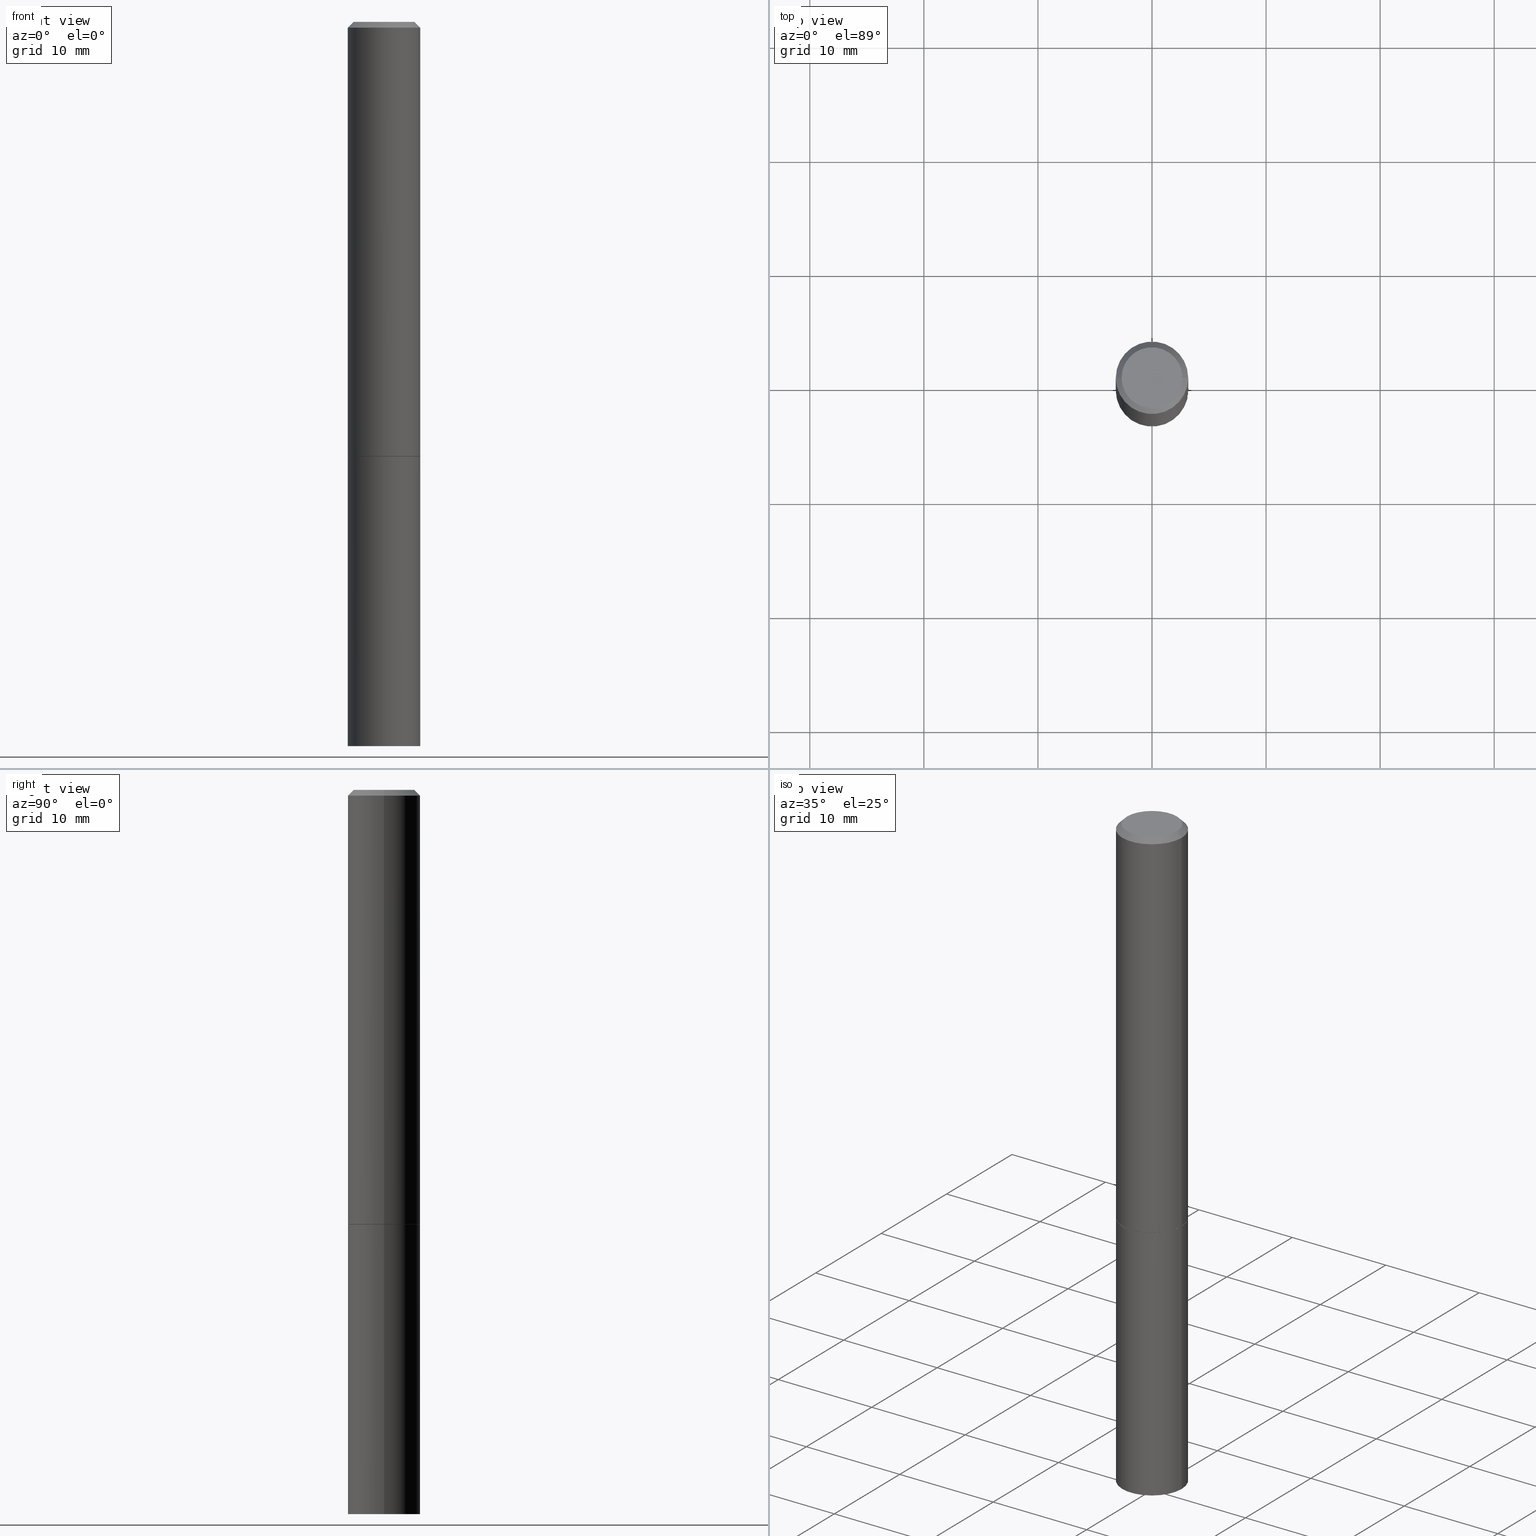
[diagram: canonical four-view strip — front | top / right | iso, engineering-drawing reading convention]
A machine part, canonical four-view strip (front | top / right | iso — engineering-drawing reading convention). The complete STEP part file that produces these views, byte-faithful:
ISO-10303-21;
HEADER;
FILE_DESCRIPTION (( 'STEP AP203' ),
    '1' );
FILE_NAME ('72970.STEP',
    '2024-02-29T05:47:59',
    ( '' ),
    ( '' ),
    'SwSTEP 2.0',
    'SolidWorks 2023',
    '' );
FILE_SCHEMA (( 'CONFIG_CONTROL_DESIGN' ));
ENDSEC;

DATA;
#1 = CARTESIAN_POINT ( 'NONE',  ( 3.665757740471519853E-29, -5.233730526925875958E-15, -1.499000000000000110 ) ) ;
#2 = COORDINATED_UNIVERSAL_TIME_OFFSET ( 5, 0, .BEHIND. ) ;
#3 = DIRECTION ( 'NONE',  ( -2.445468806185136597E-29, 3.491481338843145583E-15, 1.000000000000000000 ) ) ;
#4 = AXIS2_PLACEMENT_3D ( 'NONE', #92, #68, #120 ) ;
#5 = DIRECTION ( 'NONE',  ( 1.000000000000000000, -6.982962677686266711E-15, 4.876206205277401876E-29 ) ) ;
#6 = CC_DESIGN_DATE_AND_TIME_ASSIGNMENT ( #87, #206, ( #97 ) ) ;
#7 = CYLINDRICAL_SURFACE ( 'NONE', #74, 0.1250000000000000000 ) ;
#8 = PERSON_AND_ORGANIZATION_ROLE ( 'design_supplier' ) ;
#9 = CARTESIAN_POINT ( 'NONE',  ( 6.113672015462842613E-29, -8.728703347107864943E-15, -2.500000000000000000 ) ) ;
#10 = PERSON_AND_ORGANIZATION ( #320, #110 ) ;
#11 = FACE_OUTER_BOUND ( 'NONE', #223, .T. ) ;
#12 = AXIS2_PLACEMENT_3D ( 'NONE', #276, #180, #274 ) ;
#13 = EDGE_CURVE ( 'NONE', #365, #132, #312, .T. ) ;
#14 = ORIENTED_EDGE ( 'NONE', *, *, #76, .F. ) ;
#15 = ADVANCED_FACE ( 'NONE', ( #109 ), #112, .T. ) ;
#16 = EDGE_LOOP ( 'NONE', ( #284, #335, #216, #130 ) ) ;
#17 = CIRCLE ( 'NONE', #225, 0.1049999999999998296 ) ;
#18 = DIRECTION ( 'NONE',  ( 2.438088387897960049E-29, -3.491481338843145188E-15, -1.000000000000000000 ) ) ;
#19 = ORIENTED_EDGE ( 'NONE', *, *, #326, .T. ) ;
#20 = CC_DESIGN_PERSON_AND_ORGANIZATION_ASSIGNMENT ( #119, #344, ( #361 ) ) ;
#21 = CIRCLE ( 'NONE', #232, 0.1250000000000000000 ) ;
#22 = ADVANCED_BREP_SHAPE_REPRESENTATION ( '72970', ( #203, #214, #57 ), #35 ) ;
#23 = AXIS2_PLACEMENT_3D ( 'NONE', #307, #45, #327 ) ;
#24 = SECURITY_CLASSIFICATION ( '', '', #61 ) ;
#25 = ORIENTED_EDGE ( 'NONE', *, *, #143, .F. ) ;
#26 = DIRECTION ( 'NONE',  ( -2.445468806185136877E-29, 3.491481338843145188E-15, 1.000000000000000000 ) ) ;
#27 = DIRECTION ( 'NONE',  ( -0.7071067811865232589, 7.493145998870265808E-15, 0.7071067811865715536 ) ) ;
#28 = CIRCLE ( 'NONE', #240, 0.1250000000000000000 ) ;
#29 = DIRECTION ( 'NONE',  ( 0.7071067811865232589, -2.468850131082003836E-15, 0.7071067811865715536 ) ) ;
#30 = DIRECTION ( 'NONE',  ( -0.7071067811865465735, 2.468850131082246805E-15, -0.7071067811865484609 ) ) ;
#31 = APPROVAL ( #148, 'UNSPECIFIED' ) ;
#32 = LINE ( 'NONE', #265, #310 ) ;
#33 = COORDINATED_UNIVERSAL_TIME_OFFSET ( 5, 0, .BEHIND. ) ;
#34 = CLOSED_SHELL ( 'NONE', ( #279, #15, #171, #60 ) ) ;
#35 =( GEOMETRIC_REPRESENTATION_CONTEXT ( 3 ) GLOBAL_UNCERTAINTY_ASSIGNED_CONTEXT ( ( #219 ) ) GLOBAL_UNIT_ASSIGNED_CONTEXT ( ( #126, #325, #215 ) ) REPRESENTATION_CONTEXT ( 'NONE', 'WORKASPACE' ) );
#36 = DIRECTION ( 'NONE',  ( 1.000000000000000000, -6.982962677686270655E-15, 0.000000000000000000 ) ) ;
#37 = DATE_AND_TIME ( #237, #293 ) ;
#38 = DIRECTION ( 'NONE',  ( 1.000000000000000000, -6.982962677686262766E-15, 0.000000000000000000 ) ) ;
#39 = PERSON_AND_ORGANIZATION ( #320, #110 ) ;
#40 = CARTESIAN_POINT ( 'NONE',  ( 0.1250000000000000000, -6.110092342975501516E-15, -1.500000000000000222 ) ) ;
#41 = EDGE_CURVE ( 'NONE', #101, #365, #309, .T. ) ;
#42 = PERSON_AND_ORGANIZATION ( #320, #110 ) ;
#43 = COORDINATED_UNIVERSAL_TIME_OFFSET ( 5, 0, .BEHIND. ) ;
#44 = EDGE_CURVE ( 'NONE', #332, #244, #285, .T. ) ;
#45 = DIRECTION ( 'NONE',  ( 2.445468806185136597E-29, -3.491481338843145583E-15, -1.000000000000000000 ) ) ;
#46 = ORIENTED_EDGE ( 'NONE', *, *, #366, .T. ) ;
#47 = DIRECTION ( 'NONE',  ( 1.000000000000000000, -6.982962677686270655E-15, 0.000000000000000000 ) ) ;
#48 = CIRCLE ( 'NONE', #258, 0.1239999999999999991 ) ;
#49 = ORIENTED_EDGE ( 'NONE', *, *, #41, .T. ) ;
#50 = ADVANCED_FACE ( 'NONE', ( #164 ), #51, .F. ) ;
#51 = PLANE ( 'NONE',  #298 ) ;
#52 = CIRCLE ( 'NONE', #166, 0.1250000000000000000 ) ;
#53 = APPROVAL_PERSON_ORGANIZATION ( #93, #299, #291 ) ;
#54 = ORIENTED_EDGE ( 'NONE', *, *, #283, .F. ) ;
#55 = CARTESIAN_POINT ( 'NONE',  ( -0.1239999999999999991, -4.356149015922194741E-15, -1.500000000000000222 ) ) ;
#56 = CARTESIAN_POINT ( 'NONE',  ( -0.1249999999999999029, 8.881784197001245421E-16, -6.148668862818627323E-30 ) ) ;
#57 = AXIS2_PLACEMENT_3D ( 'NONE', #82, #89, #235 ) ;
#58 = AXIS2_PLACEMENT_3D ( 'NONE', #211, #352, #47 ) ;
#59 = DIRECTION ( 'NONE',  ( -2.445468806185136597E-29, 3.491481338843145583E-15, 1.000000000000000000 ) ) ;
#60 = ADVANCED_FACE ( 'NONE', ( #227 ), #255, .T. ) ;
#61 = SECURITY_CLASSIFICATION_LEVEL ( 'unclassified' ) ;
#62 = LINE ( 'NONE', #322, #187 ) ;
#63 = APPLICATION_CONTEXT ( 'configuration controlled 3d designs of mechanical parts and assemblies' ) ;
#64 = DIRECTION ( 'NONE',  ( 1.000000000000000000, -6.982962677686266711E-15, 4.876176775795935793E-29 ) ) ;
#65 = PERSON_AND_ORGANIZATION_ROLE ( 'creator' ) ;
#66 = DIRECTION ( 'NONE',  ( 1.000000000000000000, -6.982962677686266711E-15, 4.876176775795935793E-29 ) ) ;
#67 = EDGE_CURVE ( 'NONE', #304, #259, #165, .T. ) ;
#68 = DIRECTION ( 'NONE',  ( 2.438088387897960049E-29, -3.491481338843145188E-15, -1.000000000000000000 ) ) ;
#69 = DIRECTION ( 'NONE',  ( 1.000000000000000000, -6.982962677686270655E-15, 0.000000000000000000 ) ) ;
#70 = CIRCLE ( 'NONE', #12, 0.1250000000000000000 ) ;
#71 = DIRECTION ( 'NONE',  ( -2.445468806185136597E-29, 3.491481338843145583E-15, 1.000000000000000000 ) ) ;
#72 = FACE_OUTER_BOUND ( 'NONE', #183, .T. ) ;
#73 = VERTEX_POINT ( 'NONE', #139 ) ;
#74 = AXIS2_PLACEMENT_3D ( 'NONE', #202, #319, #66 ) ;
#75 = LOCAL_TIME ( 0, 47, 59.00000000000000000, #2 ) ;
#76 = EDGE_CURVE ( 'NONE', #259, #365, #21, .T. ) ;
#77 = ORIENTED_EDGE ( 'NONE', *, *, #326, .F. ) ;
#78 = ORIENTED_EDGE ( 'NONE', *, *, #343, .F. ) ;
#79 = CARTESIAN_POINT ( 'NONE',  ( -0.1239999999999999991, -4.350850561573972339E-15, -1.500000000000000222 ) ) ;
#80 = CC_DESIGN_APPROVAL ( #108, ( #24 ) ) ;
#81 = ORIENTED_EDGE ( 'NONE', *, *, #140, .F. ) ;
#82 = CARTESIAN_POINT ( 'NONE',  ( 0.000000000000000000, 0.000000000000000000, 0.000000000000000000 ) ) ;
#83 = DIRECTION ( 'NONE',  ( 1.000000000000000000, -6.982962677686266711E-15, 4.876176775795935793E-29 ) ) ;
#84 = FACE_OUTER_BOUND ( 'NONE', #256, .T. ) ;
#85 = VECTOR ( 'NONE', #254, 39.37007874015748143 ) ;
#86 = CIRCLE ( 'NONE', #233, 0.1249999999999998057 ) ;
#87 = DATE_AND_TIME ( #199, #105 ) ;
#88 = CARTESIAN_POINT ( 'NONE',  ( -0.1249999999999998057, 8.030407079339189559E-16, -0.02000000000000004552 ) ) ;
#89 = DIRECTION ( 'NONE',  ( 0.000000000000000000, 0.000000000000000000, 1.000000000000000000 ) ) ;
#90 = DIRECTION ( 'NONE',  ( 1.000000000000000000, -6.982962677686270655E-15, 0.000000000000000000 ) ) ;
#91 = PERSON_AND_ORGANIZATION ( #320, #110 ) ;
#92 = CARTESIAN_POINT ( 'NONE',  ( 8.728703347108198236E-16, 0.1249999999999947542, -1.500000000000000666 ) ) ;
#93 = PERSON_AND_ORGANIZATION ( #320, #110 ) ;
#94 = CONICAL_SURFACE ( 'NONE', #305, 0.1249999999999998057, 0.7853981633974469467 ) ;
#95 = DIRECTION ( 'NONE',  ( 1.000000000000000000, -6.982962677686267499E-15, 0.000000000000000000 ) ) ;
#96 = FACE_OUTER_BOUND ( 'NONE', #275, .T. ) ;
#97 = PRODUCT_DEFINITION ( 'UNKNOWN', '', #361, #186 ) ;
#98 = ORIENTED_EDGE ( 'NONE', *, *, #41, .F. ) ;
#99 = DIMENSIONAL_EXPONENTS ( 1.000000000000000000, 0.000000000000000000, 0.000000000000000000, 0.000000000000000000, 0.000000000000000000, 0.000000000000000000, 0.000000000000000000 ) ;
#100 = VECTOR ( 'NONE', #292, 39.37007874015748143 ) ;
#101 = VERTEX_POINT ( 'NONE', #79 ) ;
#102 = CARTESIAN_POINT ( 'NONE',  ( 0.1049999999999998296, -8.238720831321564811E-16, -1.707404996039620013E-17 ) ) ;
#103 = ADVANCED_FACE ( 'NONE', ( #84 ), #196, .T. ) ;
#104 = ORIENTED_EDGE ( 'NONE', *, *, #143, .T. ) ;
#105 = LOCAL_TIME ( 0, 47, 59.00000000000000000, #264 ) ;
#106 = DIRECTION ( 'NONE',  ( 2.438088387897960049E-29, -3.491481338843145188E-15, -1.000000000000000000 ) ) ;
#107 = CARTESIAN_POINT ( 'NONE',  ( 8.728703347108443769E-16, 0.1249999999999912709, -2.500000000000000444 ) ) ;
#108 = APPROVAL ( #210, 'UNSPECIFIED' ) ;
#109 = FACE_OUTER_BOUND ( 'NONE', #224, .T. ) ;
#110 = ORGANIZATION ( 'UNSPECIFIED', 'UNSPECIFIED', '' ) ;
#111 = DIRECTION ( 'NONE',  ( -2.438088387897960049E-29, 3.491481338843145188E-15, 1.000000000000000000 ) ) ;
#112 = PLANE ( 'NONE',  #356 ) ;
#113 = EDGE_CURVE ( 'NONE', #331, #221, #217, .T. ) ;
#114 = PERSON_AND_ORGANIZATION ( #320, #110 ) ;
#115 = DIRECTION ( 'NONE',  ( 0.7071067811865465735, -7.319954787623252890E-15, -0.7071067811865484609 ) ) ;
#116 = CC_DESIGN_SECURITY_CLASSIFICATION ( #24, ( #361 ) ) ;
#117 = APPLICATION_PROTOCOL_DEFINITION ( 'international standard', 'config_control_design', 1994, #63 ) ;
#118 = FACE_OUTER_BOUND ( 'NONE', #192, .T. ) ;
#119 = PERSON_AND_ORGANIZATION ( #320, #110 ) ;
#120 = DIRECTION ( 'NONE',  ( -1.000000000000000000, 6.982962677686265922E-15, -4.876176775795935793E-29 ) ) ;
#121 = CARTESIAN_POINT ( 'NONE',  ( 4.890937612370284544E-31, -6.982962677686307633E-17, -0.02000000000000004552 ) ) ;
#122 = DATE_TIME_ROLE ( 'classification_date' ) ;
#123 = CIRCLE ( 'NONE', #329, 0.1249999999999998057 ) ;
#124 = DIRECTION ( 'NONE',  ( -2.445468806185136597E-29, 3.491481338843145583E-15, 1.000000000000000000 ) ) ;
#125 = EDGE_CURVE ( 'NONE', #259, #280, #290, .T. ) ;
#126 =( CONVERSION_BASED_UNIT ( 'INCH', #247 ) LENGTH_UNIT ( ) NAMED_UNIT ( #99 ) );
#127 = ORIENTED_EDGE ( 'NONE', *, *, #283, .T. ) ;
#128 = DIRECTION ( 'NONE',  ( 1.000000000000000000, -6.982962677686266711E-15, 4.876206205277401876E-29 ) ) ;
#129 = AXIS2_PLACEMENT_3D ( 'NONE', #141, #268, #90 ) ;
#130 = ORIENTED_EDGE ( 'NONE', *, *, #289, .T. ) ;
#131 = DIRECTION ( 'NONE',  ( 1.000000000000000000, -6.982962677686267499E-15, 0.000000000000000000 ) ) ;
#132 = VERTEX_POINT ( 'NONE', #88 ) ;
#133 = DIRECTION ( 'NONE',  ( 1.000000000000000000, -6.982962677686266711E-15, 4.876176775795935793E-29 ) ) ;
#134 = EDGE_CURVE ( 'NONE', #304, #101, #48, .T. ) ;
#135 = APPLICATION_CONTEXT ( 'configuration controlled 3d designs of mechanical parts and assemblies' ) ;
#136 = EDGE_LOOP ( 'NONE', ( #98, #301, #328, #77 ) ) ;
#137 = ORIENTED_EDGE ( 'NONE', *, *, #76, .T. ) ;
#138 = CARTESIAN_POINT ( 'NONE',  ( 3.668203209277704895E-29, -5.237222008264718177E-15, -1.500000000000000222 ) ) ;
#139 = CARTESIAN_POINT ( 'NONE',  ( -0.1250000000000000000, -6.094784257986165933E-15, -1.500000000000000222 ) ) ;
#140 = EDGE_CURVE ( 'NONE', #101, #304, #162, .T. ) ;
#141 = CARTESIAN_POINT ( 'NONE',  ( 3.668203209277704895E-29, -5.237222008264718177E-15, -1.500000000000000222 ) ) ;
#142 = FACE_OUTER_BOUND ( 'NONE', #16, .T. ) ;
#143 = EDGE_CURVE ( 'NONE', #73, #244, #287, .T. ) ;
#144 = CALENDAR_DATE ( 2024, 29, 2 ) ;
#145 = FACE_OUTER_BOUND ( 'NONE', #168, .T. ) ;
#146 = APPROVAL_DATE_TIME ( #37, #31 ) ;
#147 = DIRECTION ( 'NONE',  ( -2.445468806185136597E-29, 3.491481338843145583E-15, 1.000000000000000000 ) ) ;
#148 = APPROVAL_STATUS ( 'not_yet_approved' ) ;
#149 = CARTESIAN_POINT ( 'NONE',  ( 0.1249999999999998057, -9.273918764983031658E-16, -0.02000000000000004552 ) ) ;
#150 = CONICAL_SURFACE ( 'NONE', #348, 0.1239999999999999991, 0.7853981633974141952 ) ;
#151 = APPROVAL_DATE_TIME ( #349, #108 ) ;
#152 = CARTESIAN_POINT ( 'NONE',  ( 0.1250000000000000000, -9.601573681818648281E-15, -2.500000000000000000 ) ) ;
#153 = ORIENTED_EDGE ( 'NONE', *, *, #260, .T. ) ;
#154 = CARTESIAN_POINT ( 'NONE',  ( -0.1250000000000000000, -6.094784257986165933E-15, -2.500000000000000000 ) ) ;
#155 = DIRECTION ( 'NONE',  ( -2.445468806185136597E-29, 3.491481338843145583E-15, 1.000000000000000000 ) ) ;
#156 = APPROVAL_PERSON_ORGANIZATION ( #39, #31, #167 ) ;
#157 = ORIENTED_EDGE ( 'NONE', *, *, #13, .F. ) ;
#158 = FACE_OUTER_BOUND ( 'NONE', #353, .T. ) ;
#159 = ORIENTED_EDGE ( 'NONE', *, *, #251, .T. ) ;
#160 = CC_DESIGN_PERSON_AND_ORGANIZATION_ASSIGNMENT ( #114, #314, ( #184 ) ) ;
#161 = ORIENTED_EDGE ( 'NONE', *, *, #134, .F. ) ;
#162 = CIRCLE ( 'NONE', #129, 0.1239999999999999991 ) ;
#163 = CARTESIAN_POINT ( 'NONE',  ( 0.1250000000000000000, -8.728703347107833388E-16, 6.095220969744919741E-30 ) ) ;
#164 = FACE_OUTER_BOUND ( 'NONE', #330, .T. ) ;
#165 = LINE ( 'NONE', #286, #339 ) ;
#166 = AXIS2_PLACEMENT_3D ( 'NONE', #241, #295, #38 ) ;
#167 = APPROVAL_ROLE ( '' ) ;
#168 = EDGE_LOOP ( 'NONE', ( #153, #159, #54, #362 ) ) ;
#169 = APPROVAL_STATUS ( 'not_yet_approved' ) ;
#170 = CARTESIAN_POINT ( 'NONE',  ( -0.1049999999999998296, 7.681258945454878985E-16, -1.707404996040689597E-17 ) ) ;
#171 = ADVANCED_FACE ( 'NONE', ( #11 ), #317, .F. ) ;
#172 = DIRECTION ( 'NONE',  ( 1.000000000000000000, -6.982962677686270655E-15, 0.000000000000000000 ) ) ;
#173 = CC_DESIGN_DATE_AND_TIME_ASSIGNMENT ( #338, #122, ( #24 ) ) ;
#174 = CONICAL_SURFACE ( 'NONE', #23, 0.1249999999999998057, 0.7853981633974469467 ) ;
#175 = CARTESIAN_POINT ( 'NONE',  ( 0.1249999999999998057, -9.273918764983031658E-16, -0.02000000000000004552 ) ) ;
#176 = DIRECTION ( 'NONE',  ( 1.000000000000000000, -6.982962677686262766E-15, 0.000000000000000000 ) ) ;
#177 = DIRECTION ( 'NONE',  ( -1.000000000000000000, 6.982962677686267499E-15, 0.000000000000000000 ) ) ;
#178 = ADVANCED_FACE ( 'NONE', ( #142 ), #94, .T. ) ;
#179 = AXIS2_PLACEMENT_3D ( 'NONE', #228, #336, #83 ) ;
#180 = DIRECTION ( 'NONE',  ( -2.445468806185136597E-29, 3.491481338843145583E-15, 1.000000000000000000 ) ) ;
#181 = ORIENTED_EDGE ( 'NONE', *, *, #134, .T. ) ;
#182 = PRODUCT_DEFINITION_SHAPE ( 'NONE', 'NONE',  #97 ) ;
#183 = EDGE_LOOP ( 'NONE', ( #46, #311 ) ) ;
#184 = PRODUCT ( '72970', '72970', '', ( #261 ) ) ;
#185 = DIRECTION ( 'NONE',  ( -2.445468806185136597E-29, 3.491481338843145583E-15, 1.000000000000000000 ) ) ;
#186 = DESIGN_CONTEXT ( 'detailed design', #63, 'design' ) ;
#187 = VECTOR ( 'NONE', #30, 39.37007874015748143 ) ;
#188 = EDGE_CURVE ( 'NONE', #221, #132, #62, .T. ) ;
#189 = ORIENTED_EDGE ( 'NONE', *, *, #289, .F. ) ;
#190 = CC_DESIGN_PERSON_AND_ORGANIZATION_ASSIGNMENT ( #10, #201, ( #24 ) ) ;
#191 = ORIENTED_EDGE ( 'NONE', *, *, #229, .T. ) ;
#192 = EDGE_LOOP ( 'NONE', ( #157, #19, #243, #189 ) ) ;
#193 = APPLICATION_PROTOCOL_DEFINITION ( 'international standard', 'config_control_design', 1994, #135 ) ;
#194 = DIRECTION ( 'NONE',  ( -1.000000000000000000, 6.982962677686265922E-15, -4.876176775795935793E-29 ) ) ;
#195 = ORIENTED_EDGE ( 'NONE', *, *, #323, .F. ) ;
#196 = CYLINDRICAL_SURFACE ( 'NONE', #204, 0.1249999999999999029 ) ;
#197 = AXIS2_PLACEMENT_3D ( 'NONE', #242, #185, #354 ) ;
#198 = CARTESIAN_POINT ( 'NONE',  ( 3.668203209277704895E-29, -5.237222008264718177E-15, -1.500000000000000222 ) ) ;
#199 = CALENDAR_DATE ( 2024, 29, 2 ) ;
#200 = CARTESIAN_POINT ( 'NONE',  ( 3.668203209277704895E-29, -5.237222008264718177E-15, -1.500000000000000222 ) ) ;
#201 = PERSON_AND_ORGANIZATION_ROLE ( 'classification_officer' ) ;
#202 = CARTESIAN_POINT ( 'NONE',  ( 0.000000000000000000, 0.000000000000000000, 0.000000000000000000 ) ) ;
#203 = MANIFOLD_SOLID_BREP ( 'Body-Move/Copy2[1]', #34 ) ;
#204 = AXIS2_PLACEMENT_3D ( 'NONE', #315, #59, #133 ) ;
#205 = APPROVAL_PERSON_ORGANIZATION ( #42, #108, #249 ) ;
#206 = DATE_TIME_ROLE ( 'creation_date' ) ;
#207 = DIRECTION ( 'NONE',  ( -2.445468806185136597E-29, 3.491481338843145583E-15, 1.000000000000000000 ) ) ;
#208 = PRODUCT_RELATED_PRODUCT_CATEGORY ( 'detail', '', ( #184 ) ) ;
#209 = ADVANCED_FACE ( 'NONE', ( #118 ), #324, .T. ) ;
#210 = APPROVAL_STATUS ( 'not_yet_approved' ) ;
#211 = CARTESIAN_POINT ( 'NONE',  ( 3.668203209277704895E-29, -5.237222008264718177E-15, -1.500000000000000222 ) ) ;
#212 = ORIENTED_EDGE ( 'NONE', *, *, #125, .F. ) ;
#213 = CALENDAR_DATE ( 2024, 29, 2 ) ;
#214 = MANIFOLD_SOLID_BREP ( 'Body-Move/Copy2[2]', #272 ) ;
#215 =( NAMED_UNIT ( * ) SI_UNIT ( $, .STERADIAN. ) SOLID_ANGLE_UNIT ( ) );
#216 = ORIENTED_EDGE ( 'NONE', *, *, #188, .T. ) ;
#217 = CIRCLE ( 'NONE', #245, 0.1049999999999998296 ) ;
#218 =( LENGTH_UNIT ( ) NAMED_UNIT ( * ) SI_UNIT ( $, .METRE. ) );
#219 = UNCERTAINTY_MEASURE_WITH_UNIT (LENGTH_MEASURE( 1.000000000000000082E-05 ), #126, 'distance_accuracy_value', 'NONE');
#220 = AXIS2_PLACEMENT_3D ( 'NONE', #296, #234, #64 ) ;
#221 = VERTEX_POINT ( 'NONE', #170 ) ;
#222 = ORIENTED_EDGE ( 'NONE', *, *, #251, .F. ) ;
#223 = EDGE_LOOP ( 'NONE', ( #127, #104 ) ) ;
#224 = EDGE_LOOP ( 'NONE', ( #308, #78 ) ) ;
#225 = AXIS2_PLACEMENT_3D ( 'NONE', #359, #71, #128 ) ;
#226 = CC_DESIGN_PERSON_AND_ORGANIZATION_ASSIGNMENT ( #346, #65, ( #97 ) ) ;
#227 = FACE_OUTER_BOUND ( 'NONE', #257, .T. ) ;
#228 = CARTESIAN_POINT ( 'NONE',  ( 0.000000000000000000, 0.000000000000000000, 0.000000000000000000 ) ) ;
#229 = EDGE_CURVE ( 'NONE', #331, #280, #341, .T. ) ;
#230 = CALENDAR_DATE ( 2024, 29, 2 ) ;
#231 = CARTESIAN_POINT ( 'NONE',  ( 0.1250000000000000000, -6.106600861636658508E-15, -1.499000000000000110 ) ) ;
#232 = AXIS2_PLACEMENT_3D ( 'NONE', #1, #337, #363 ) ;
#233 = AXIS2_PLACEMENT_3D ( 'NONE', #303, #155, #131 ) ;
#234 = DIRECTION ( 'NONE',  ( -2.445468806185136597E-29, 3.491481338843145583E-15, 1.000000000000000000 ) ) ;
#235 = DIRECTION ( 'NONE',  ( 1.000000000000000000, 0.000000000000000000, 0.000000000000000000 ) ) ;
#236 = FACE_OUTER_BOUND ( 'NONE', #136, .T. ) ;
#237 = CALENDAR_DATE ( 2024, 29, 2 ) ;
#238 = DIRECTION ( 'NONE',  ( -2.445468806185136597E-29, 3.491481338843145583E-15, 1.000000000000000000 ) ) ;
#239 = ADVANCED_FACE ( 'NONE', ( #236 ), #150, .T. ) ;
#240 = AXIS2_PLACEMENT_3D ( 'NONE', #9, #124, #36 ) ;
#241 = CARTESIAN_POINT ( 'NONE',  ( 3.668203209277704895E-29, -5.237222008264718177E-15, -1.500000000000000222 ) ) ;
#242 = CARTESIAN_POINT ( 'NONE',  ( 6.113672015462842613E-29, -8.728703347107864943E-15, -2.500000000000000000 ) ) ;
#243 = ORIENTED_EDGE ( 'NONE', *, *, #125, .T. ) ;
#244 = VERTEX_POINT ( 'NONE', #40 ) ;
#245 = AXIS2_PLACEMENT_3D ( 'NONE', #271, #3, #5 ) ;
#246 = CC_DESIGN_APPROVAL ( #299, ( #361 ) ) ;
#247 = LENGTH_MEASURE_WITH_UNIT ( LENGTH_MEASURE( 0.02539999999999999897 ), #218 );
#248 = ORIENTED_EDGE ( 'NONE', *, *, #13, .T. ) ;
#249 = APPROVAL_ROLE ( '' ) ;
#250 = DIRECTION ( 'NONE',  ( -1.000000000000000000, 6.982962677686265922E-15, -4.876176775795935793E-29 ) ) ;
#251 = EDGE_CURVE ( 'NONE', #313, #73, #32, .T. ) ;
#252 = VECTOR ( 'NONE', #27, 39.37007874015748854 ) ;
#253 = LOCAL_TIME ( 0, 47, 59.00000000000000000, #43 ) ;
#254 = DIRECTION ( 'NONE',  ( -2.445468806185136877E-29, 3.491481338843145188E-15, 1.000000000000000000 ) ) ;
#255 = CYLINDRICAL_SURFACE ( 'NONE', #179, 0.1250000000000000000 ) ;
#256 = EDGE_LOOP ( 'NONE', ( #137, #248, #195, #212 ) ) ;
#257 = EDGE_LOOP ( 'NONE', ( #222, #278, #355, #25 ) ) ;
#258 = AXIS2_PLACEMENT_3D ( 'NONE', #198, #147, #69 ) ;
#259 = VERTEX_POINT ( 'NONE', #231 ) ;
#260 = EDGE_CURVE ( 'NONE', #332, #313, #28, .T. ) ;
#261 = MECHANICAL_CONTEXT ( 'NONE', #135, 'mechanical' ) ;
#262 = CARTESIAN_POINT ( 'NONE',  ( 3.668203209277704895E-29, -5.237222008264718177E-15, -1.500000000000000222 ) ) ;
#263 = CC_DESIGN_PERSON_AND_ORGANIZATION_ASSIGNMENT ( #91, #8, ( #361 ) ) ;
#264 = COORDINATED_UNIVERSAL_TIME_OFFSET ( 5, 0, .BEHIND. ) ;
#265 = CARTESIAN_POINT ( 'NONE',  ( -0.1250000000000000000, 8.881784197001252323E-16, -6.148668862818632227E-30 ) ) ;
#266 = CIRCLE ( 'NONE', #197, 0.1250000000000000000 ) ;
#267 = APPROVAL_DATE_TIME ( #321, #299 ) ;
#268 = DIRECTION ( 'NONE',  ( -2.445468806185136597E-29, 3.491481338843145583E-15, 1.000000000000000000 ) ) ;
#269 = COORDINATED_UNIVERSAL_TIME_OFFSET ( 5, 0, .BEHIND. ) ;
#270 = DIRECTION ( 'NONE',  ( 2.445468806185136597E-29, -3.491481338843145583E-15, -1.000000000000000000 ) ) ;
#271 = CARTESIAN_POINT ( 'NONE',  ( 4.175405657340879278E-46, -5.961372681521788801E-32, -1.707404996040164512E-17 ) ) ;
#272 = CLOSED_SHELL ( 'NONE', ( #306, #103, #318, #178, #209, #239, #50, #351 ) ) ;
#273 = CC_DESIGN_APPROVAL ( #31, ( #97 ) ) ;
#274 = DIRECTION ( 'NONE',  ( 1.000000000000000000, -6.982962677686262766E-15, 0.000000000000000000 ) ) ;
#275 = EDGE_LOOP ( 'NONE', ( #181, #49, #14, #358 ) ) ;
#276 = CARTESIAN_POINT ( 'NONE',  ( 3.665757740471519853E-29, -5.233730526925875958E-15, -1.499000000000000110 ) ) ;
#277 = CARTESIAN_POINT ( 'NONE',  ( 7.332110811570568410E-16, 0.1049999999999998296, -3.751425655587305558E-16 ) ) ;
#278 = ORIENTED_EDGE ( 'NONE', *, *, #343, .T. ) ;
#279 = ADVANCED_FACE ( 'NONE', ( #145 ), #7, .T. ) ;
#280 = VERTEX_POINT ( 'NONE', #175 ) ;
#281 = AXIS2_PLACEMENT_3D ( 'NONE', #277, #18, #250 ) ;
#282 = DIRECTION ( 'NONE',  ( 1.000000000000000000, -6.982962677686265922E-15, 4.876176775795935793E-29 ) ) ;
#283 = EDGE_CURVE ( 'NONE', #244, #73, #52, .T. ) ;
#284 = ORIENTED_EDGE ( 'NONE', *, *, #229, .F. ) ;
#285 = LINE ( 'NONE', #163, #85 ) ;
#286 = CARTESIAN_POINT ( 'NONE',  ( 0.1239999999999999991, -6.103109380297816290E-15, -1.500000000000000222 ) ) ;
#287 = CIRCLE ( 'NONE', #334, 0.1250000000000000000 ) ;
#288 = ORIENTED_EDGE ( 'NONE', *, *, #323, .T. ) ;
#289 = EDGE_CURVE ( 'NONE', #132, #280, #123, .T. ) ;
#290 = LINE ( 'NONE', #345, #100 ) ;
#291 = APPROVAL_ROLE ( '' ) ;
#292 = DIRECTION ( 'NONE',  ( -2.445468806185136877E-29, 3.491481338843145188E-15, 1.000000000000000000 ) ) ;
#293 = LOCAL_TIME ( 0, 47, 59.00000000000000000, #269 ) ;
#294 = LOCAL_TIME ( 0, 47, 59.00000000000000000, #33 ) ;
#295 = DIRECTION ( 'NONE',  ( -2.445468806185136597E-29, 3.491481338843145583E-15, 1.000000000000000000 ) ) ;
#296 = CARTESIAN_POINT ( 'NONE',  ( 0.000000000000000000, 0.000000000000000000, 0.000000000000000000 ) ) ;
#297 = SHAPE_DEFINITION_REPRESENTATION ( #182, #22 ) ;
#298 = AXIS2_PLACEMENT_3D ( 'NONE', #138, #111, #282 ) ;
#299 = APPROVAL ( #169, 'UNSPECIFIED' ) ;
#300 = PLANE ( 'NONE',  #281 ) ;
#301 = ORIENTED_EDGE ( 'NONE', *, *, #140, .T. ) ;
#302 = CARTESIAN_POINT ( 'NONE',  ( -0.1250000000000000278, -1.763601657151242227E-15, -1.499000000000000110 ) ) ;
#303 = CARTESIAN_POINT ( 'NONE',  ( 4.890937612370284544E-31, -6.982962677686307633E-17, -0.02000000000000004552 ) ) ;
#304 = VERTEX_POINT ( 'NONE', #350 ) ;
#305 = AXIS2_PLACEMENT_3D ( 'NONE', #316, #270, #177 ) ;
#306 = ADVANCED_FACE ( 'NONE', ( #96 ), #357, .T. ) ;
#307 = CARTESIAN_POINT ( 'NONE',  ( 4.890937612370284544E-31, -6.982962677686307633E-17, -0.02000000000000004552 ) ) ;
#308 = ORIENTED_EDGE ( 'NONE', *, *, #260, .F. ) ;
#309 = LINE ( 'NONE', #55, #252 ) ;
#310 = VECTOR ( 'NONE', #342, 39.37007874015748143 ) ;
#311 = ORIENTED_EDGE ( 'NONE', *, *, #113, .T. ) ;
#312 = LINE ( 'NONE', #56, #333 ) ;
#313 = VERTEX_POINT ( 'NONE', #154 ) ;
#314 = PERSON_AND_ORGANIZATION_ROLE ( 'design_owner' ) ;
#315 = CARTESIAN_POINT ( 'NONE',  ( 0.000000000000000000, 0.000000000000000000, 0.000000000000000000 ) ) ;
#316 = CARTESIAN_POINT ( 'NONE',  ( 4.890937612370284544E-31, -6.982962677686307633E-17, -0.02000000000000004552 ) ) ;
#317 = PLANE ( 'NONE',  #4 ) ;
#318 = ADVANCED_FACE ( 'NONE', ( #158 ), #174, .T. ) ;
#319 = DIRECTION ( 'NONE',  ( -2.445468806185136597E-29, 3.491481338843145583E-15, 1.000000000000000000 ) ) ;
#320 = PERSON ( 'UNSPECIFIED', 'UNSPECIFIED', 'UNSPECIFIED', ('UNSPECIFIED'), ('UNSPECIFIED'), ('UNSPECIFIED') ) ;
#321 = DATE_AND_TIME ( #144, #294 ) ;
#322 = CARTESIAN_POINT ( 'NONE',  ( -0.1249999999999998057, 8.030407079339189559E-16, -0.02000000000000004552 ) ) ;
#323 = EDGE_CURVE ( 'NONE', #280, #132, #86, .T. ) ;
#324 = CYLINDRICAL_SURFACE ( 'NONE', #220, 0.1249999999999999029 ) ;
#325 =( NAMED_UNIT ( * ) PLANE_ANGLE_UNIT ( ) SI_UNIT ( $, .RADIAN. ) );
#326 = EDGE_CURVE ( 'NONE', #365, #259, #70, .T. ) ;
#327 = DIRECTION ( 'NONE',  ( -1.000000000000000000, 6.982962677686267499E-15, 0.000000000000000000 ) ) ;
#328 = ORIENTED_EDGE ( 'NONE', *, *, #67, .T. ) ;
#329 = AXIS2_PLACEMENT_3D ( 'NONE', #121, #347, #95 ) ;
#330 = EDGE_LOOP ( 'NONE', ( #161, #81 ) ) ;
#331 = VERTEX_POINT ( 'NONE', #102 ) ;
#332 = VERTEX_POINT ( 'NONE', #152 ) ;
#333 = VECTOR ( 'NONE', #26, 39.37007874015748143 ) ;
#334 = AXIS2_PLACEMENT_3D ( 'NONE', #262, #207, #176 ) ;
#335 = ORIENTED_EDGE ( 'NONE', *, *, #366, .F. ) ;
#336 = DIRECTION ( 'NONE',  ( -2.445468806185136597E-29, 3.491481338843145583E-15, 1.000000000000000000 ) ) ;
#337 = DIRECTION ( 'NONE',  ( -2.445468806185136597E-29, 3.491481338843145583E-15, 1.000000000000000000 ) ) ;
#338 = DATE_AND_TIME ( #230, #75 ) ;
#339 = VECTOR ( 'NONE', #29, 39.37007874015748854 ) ;
#340 = VECTOR ( 'NONE', #115, 39.37007874015748143 ) ;
#341 = LINE ( 'NONE', #149, #340 ) ;
#342 = DIRECTION ( 'NONE',  ( -2.445468806185136877E-29, 3.491481338843145188E-15, 1.000000000000000000 ) ) ;
#343 = EDGE_CURVE ( 'NONE', #313, #332, #266, .T. ) ;
#344 = PERSON_AND_ORGANIZATION_ROLE ( 'creator' ) ;
#345 = CARTESIAN_POINT ( 'NONE',  ( 0.1249999999999999029, -8.728703347107826486E-16, 6.095220969744914837E-30 ) ) ;
#346 = PERSON_AND_ORGANIZATION ( #320, #110 ) ;
#347 = DIRECTION ( 'NONE',  ( -2.445468806185136597E-29, 3.491481338843145583E-15, 1.000000000000000000 ) ) ;
#348 = AXIS2_PLACEMENT_3D ( 'NONE', #200, #238, #172 ) ;
#349 = DATE_AND_TIME ( #213, #253 ) ;
#350 = CARTESIAN_POINT ( 'NONE',  ( 0.1239999999999999991, -6.103109380297816290E-15, -1.500000000000000222 ) ) ;
#351 = ADVANCED_FACE ( 'NONE', ( #72 ), #300, .F. ) ;
#352 = DIRECTION ( 'NONE',  ( -2.445468806185136597E-29, 3.491481338843145583E-15, 1.000000000000000000 ) ) ;
#353 = EDGE_LOOP ( 'NONE', ( #364, #191, #288, #360 ) ) ;
#354 = DIRECTION ( 'NONE',  ( 1.000000000000000000, -6.982962677686270655E-15, 0.000000000000000000 ) ) ;
#355 = ORIENTED_EDGE ( 'NONE', *, *, #44, .T. ) ;
#356 = AXIS2_PLACEMENT_3D ( 'NONE', #107, #106, #194 ) ;
#357 = CONICAL_SURFACE ( 'NONE', #58, 0.1239999999999999991, 0.7853981633974141952 ) ;
#358 = ORIENTED_EDGE ( 'NONE', *, *, #67, .F. ) ;
#359 = CARTESIAN_POINT ( 'NONE',  ( 4.175405657340879278E-46, -5.961372681521788801E-32, -1.707404996040164512E-17 ) ) ;
#360 = ORIENTED_EDGE ( 'NONE', *, *, #188, .F. ) ;
#361 = PRODUCT_DEFINITION_FORMATION_WITH_SPECIFIED_SOURCE ( 'ANY', '', #184, .NOT_KNOWN. ) ;
#362 = ORIENTED_EDGE ( 'NONE', *, *, #44, .F. ) ;
#363 = DIRECTION ( 'NONE',  ( 1.000000000000000000, -6.982962677686262766E-15, 0.000000000000000000 ) ) ;
#364 = ORIENTED_EDGE ( 'NONE', *, *, #113, .F. ) ;
#365 = VERTEX_POINT ( 'NONE', #302 ) ;
#366 = EDGE_CURVE ( 'NONE', #221, #331, #17, .T. ) ;
ENDSEC;
END-ISO-10303-21;
